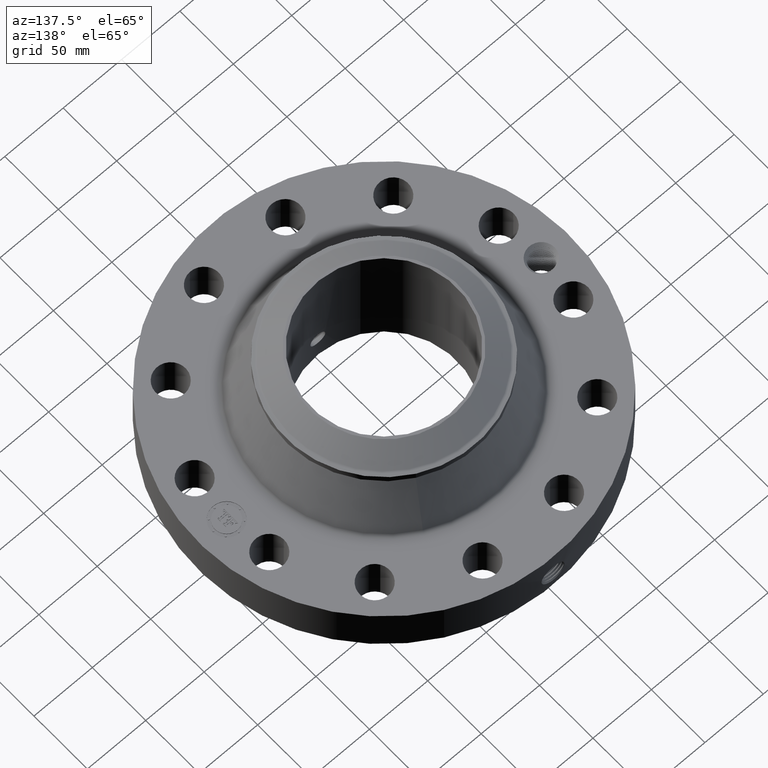
[diagram: clean part render]
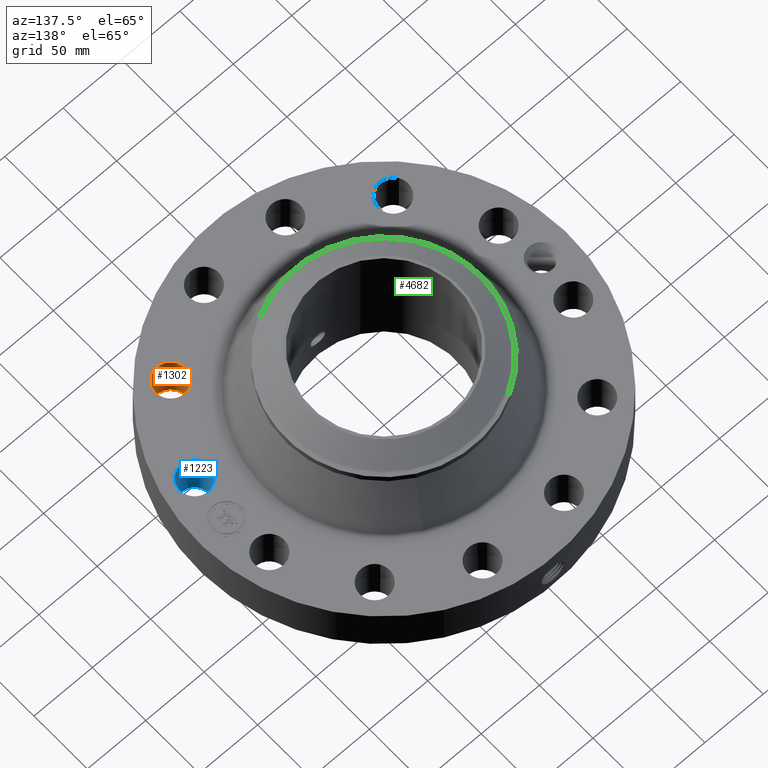
[diagram: same view with three faces highlighted in distinct colors, each labeled with its STEP entity id]
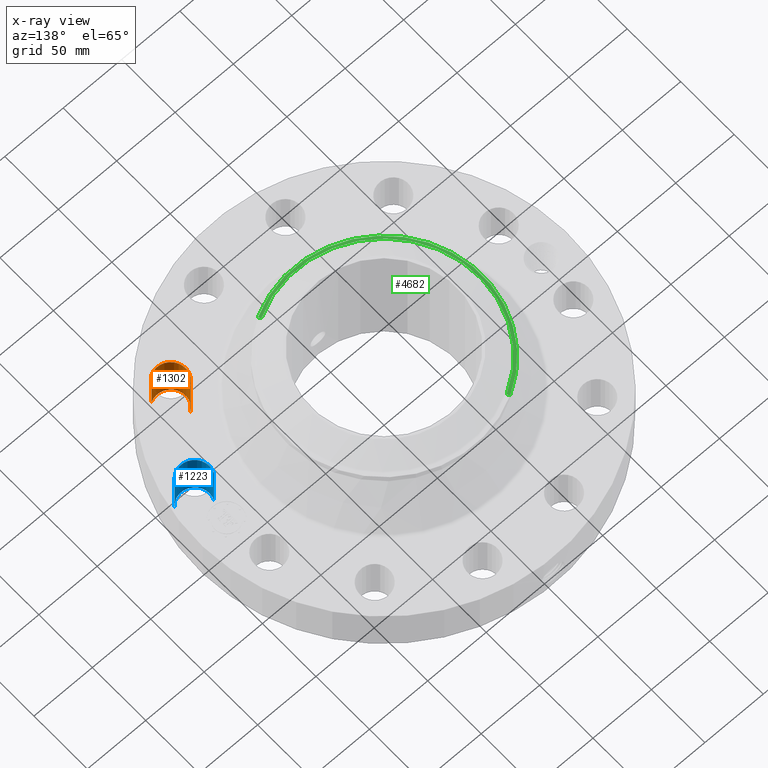
[diagram: x-ray of the same camera — body ghosted, the three highlighted faces saturated]
A machine part, auxiliary view with three faces highlighted in distinct colors.
The next image is the same camera in x-ray (body ghosted, the three faces saturated) — at least one of them is partly hidden behind the body in this view.
Their STEP definitions:

[orange] entity #1302 — the highlighted cylindrical surface (edge-blend (fillet) strip) has radius 12.7 mm, axis along (0, -0, -1).
#240=AXIS2_PLACEMENT_3D('Circle Axis2P3D',#238,#239,$) ;
#591=AXIS2_PLACEMENT_3D('Circle Axis2P3D',#589,#590,$) ;
#1277=AXIS2_PLACEMENT_3D('Cylinder Axis2P3D',#1274,#1275,#1276) ;
#233=CARTESIAN_POINT('Vertex',(3.49458899651,-3.32774401981,0.250000000001)) ;
#235=CARTESIAN_POINT('Vertex',(4.01488501972,-4.18172999642,0.250000000001)) ;
#238=CARTESIAN_POINT('Axis2P3D Location',(3.75473700812,-3.75473700812,0.250000000001)) ;
#589=CARTESIAN_POINT('Axis2P3D Location',(3.75473700812,-3.75473700812,1.87000000001)) ;
#593=CARTESIAN_POINT('Vertex',(4.01488501972,-4.18172999642,1.87000000001)) ;
#595=CARTESIAN_POINT('Vertex',(3.49458899651,-3.32774401981,1.87000000001)) ;
#1274=CARTESIAN_POINT('Axis2P3D Location',(3.75473700812,-3.75473700812,1.86606299213)) ;
#1279=CARTESIAN_POINT('Line Origine',(3.49458899651,-3.32774401981,1.06)) ;
#1284=CARTESIAN_POINT('Line Origine',(4.01488501972,-4.18172999642,1.06)) ;
#239=DIRECTION('Axis2P3D Direction',(0.,0.,-0.0393700787402)) ;
#590=DIRECTION('Axis2P3D Direction',(0.,0.,-0.0393700787402)) ;
#1275=DIRECTION('Axis2P3D Direction',(0.,-0.,-0.0393700787402)) ;
#1276=DIRECTION('Axis2P3D XDirection',(0.0204840954021,-0.0336214951417,0.)) ;
#1280=DIRECTION('Vector Direction',(0.,0.,-0.0393700787402)) ;
#1285=DIRECTION('Vector Direction',(0.,0.,-0.0393700787402)) ;
#1281=VECTOR('Line Direction',#1280,0.0393700787402) ;
#1286=VECTOR('Line Direction',#1285,0.0393700787402) ;
#1297=ORIENTED_EDGE('',*,*,#1288,.F.) ;
#1298=ORIENTED_EDGE('',*,*,#242,.T.) ;
#1299=ORIENTED_EDGE('',*,*,#1283,.T.) ;
#1300=ORIENTED_EDGE('',*,*,#597,.F.) ;
#1302=ADVANCED_FACE('PartBody',(#1301),#1278,.F.) ;
#241=CIRCLE('generated circle',#240,0.500000000002) ;
#592=CIRCLE('generated circle',#591,0.500000000002) ;
#1278=CYLINDRICAL_SURFACE('generated cylinder',#1277,0.500000000002) ;
#242=EDGE_CURVE('',#236,#234,#241,.T.) ;
#597=EDGE_CURVE('',#594,#596,#592,.T.) ;
#1283=EDGE_CURVE('',#234,#596,#1282,.F.) ;
#1288=EDGE_CURVE('',#236,#594,#1287,.F.) ;
#1296=EDGE_LOOP('',(#1297,#1298,#1299,#1300)) ;
#1301=FACE_OUTER_BOUND('',#1296,.T.) ;
#1282=LINE('Line',#1279,#1281) ;
#1287=LINE('Line',#1284,#1286) ;
#234=VERTEX_POINT('',#233) ;
#236=VERTEX_POINT('',#235) ;
#594=VERTEX_POINT('',#593) ;
#596=VERTEX_POINT('',#595) ;

[blue] entity #1223 — the highlighted cylindrical surface (edge-blend (fillet) strip) has radius 12.7 mm, axis along (0, -0, -1).
#195=AXIS2_PLACEMENT_3D('Circle Axis2P3D',#193,#194,$) ;
#564=AXIS2_PLACEMENT_3D('Circle Axis2P3D',#562,#563,$) ;
#1205=AXIS2_PLACEMENT_3D('Cylinder Axis2P3D',#1202,#1203,#1204) ;
#193=CARTESIAN_POINT('Axis2P3D Location',(5.12906613762,-1.3743291295,0.250000000001)) ;
#197=CARTESIAN_POINT('Vertex',(5.56785741856,-1.6140418988,0.250000000001)) ;
#199=CARTESIAN_POINT('Vertex',(4.69027485667,-1.1346163602,0.250000000001)) ;
#557=CARTESIAN_POINT('Vertex',(4.69027485667,-1.1346163602,1.87000000001)) ;
#559=CARTESIAN_POINT('Vertex',(5.56785741856,-1.6140418988,1.87000000001)) ;
#562=CARTESIAN_POINT('Axis2P3D Location',(5.12906613762,-1.3743291295,1.87000000001)) ;
#1202=CARTESIAN_POINT('Axis2P3D Location',(5.12906613762,-1.3743291295,1.86606299213)) ;
#1207=CARTESIAN_POINT('Line Origine',(5.56785741856,-1.6140418988,1.06)) ;
#1212=CARTESIAN_POINT('Line Origine',(4.69027485667,-1.1346163602,1.06)) ;
#194=DIRECTION('Axis2P3D Direction',(0.,0.,-0.0393700787402)) ;
#563=DIRECTION('Axis2P3D Direction',(0.,0.,-0.0393700787402)) ;
#1203=DIRECTION('Axis2P3D Direction',(0.,-0.,-0.0393700787402)) ;
#1204=DIRECTION('Axis2P3D XDirection',(-0.0345504945626,0.0188750212049,0.)) ;
#1208=DIRECTION('Vector Direction',(0.,0.,-0.0393700787402)) ;
#1213=DIRECTION('Vector Direction',(0.,0.,-0.0393700787402)) ;
#1209=VECTOR('Line Direction',#1208,0.0393700787402) ;
#1214=VECTOR('Line Direction',#1213,0.0393700787402) ;
#1218=ORIENTED_EDGE('',*,*,#1211,.F.) ;
#1219=ORIENTED_EDGE('',*,*,#201,.T.) ;
#1220=ORIENTED_EDGE('',*,*,#1216,.T.) ;
#1221=ORIENTED_EDGE('',*,*,#566,.F.) ;
#1223=ADVANCED_FACE('PartBody',(#1222),#1206,.F.) ;
#196=CIRCLE('generated circle',#195,0.500000000002) ;
#565=CIRCLE('generated circle',#564,0.500000000002) ;
#1206=CYLINDRICAL_SURFACE('generated cylinder',#1205,0.500000000002) ;
#201=EDGE_CURVE('',#198,#200,#196,.T.) ;
#566=EDGE_CURVE('',#560,#558,#565,.T.) ;
#1211=EDGE_CURVE('',#198,#560,#1210,.F.) ;
#1216=EDGE_CURVE('',#200,#558,#1215,.F.) ;
#1217=EDGE_LOOP('',(#1218,#1219,#1220,#1221)) ;
#1222=FACE_OUTER_BOUND('',#1217,.T.) ;
#1210=LINE('Line',#1207,#1209) ;
#1215=LINE('Line',#1212,#1214) ;
#198=VERTEX_POINT('',#197) ;
#200=VERTEX_POINT('',#199) ;
#558=VERTEX_POINT('',#557) ;
#560=VERTEX_POINT('',#559) ;

[green] entity #4682 — the highlighted conical surface has half-angle 80 deg.
#3482=AXIS2_PLACEMENT_3D('Circle Axis2P3D',#3480,#3481,$) ;
#3495=AXIS2_PLACEMENT_3D('Circle Axis2P3D',#3493,#3494,$) ;
#4641=AXIS2_PLACEMENT_3D('Cone Axis2P3D',#4638,#4639,#4640) ;
#4672=AXIS2_PLACEMENT_3D('Circle Axis2P3D',#4670,#4671,$) ;
#3463=CARTESIAN_POINT('Vertex',(-1.58929566048,-2.90918619268,3.77554549949)) ;
#3477=CARTESIAN_POINT('Vertex',(1.58929566048,-2.90918619268,3.77554549949)) ;
#3480=CARTESIAN_POINT('Axis2P3D Location',(0.,0.,3.77554549949)) ;
#3493=CARTESIAN_POINT('Axis2P3D Location',(0.,0.,3.77554549949)) ;
#3497=CARTESIAN_POINT('Vertex',(-1.58929566048,2.90918619268,3.77554549949)) ;
#4638=CARTESIAN_POINT('Axis2P3D Location',(0.,0.,3.79141601923)) ;
#4643=CARTESIAN_POINT('Line Origine',(-1.5677200274,2.86969226124,3.78348075936)) ;
#4647=CARTESIAN_POINT('Vertex',(-1.54614439432,2.8301983298,3.79141601923)) ;
#4654=CARTESIAN_POINT('Vertex',(1.54614439432,-2.8301983298,3.79141601923)) ;
#4657=CARTESIAN_POINT('Line Origine',(1.5677200274,-2.86969226124,3.78348075936)) ;
#4670=CARTESIAN_POINT('Axis2P3D Location',(0.,0.,3.79141601923)) ;
#3481=DIRECTION('Axis2P3D Direction',(0.,0.,-0.0393700787402)) ;
#3494=DIRECTION('Axis2P3D Direction',(0.,0.,-0.0393700787402)) ;
#4639=DIRECTION('Axis2P3D Direction',(-0.,-0.,-0.0393700787402)) ;
#4640=DIRECTION('Axis2P3D XDirection',(0.0188750212049,-0.0345504945626,0.)) ;
#4644=DIRECTION('Vector Direction',(-0.0185882672208,0.0340255949157,-0.00683654242783)) ;
#4658=DIRECTION('Vector Direction',(0.0185882672208,-0.0340255949157,-0.00683654242783)) ;
#4671=DIRECTION('Axis2P3D Direction',(0.,0.,-0.0393700787402)) ;
#4645=VECTOR('Line Direction',#4644,0.0393700787402) ;
#4659=VECTOR('Line Direction',#4658,0.0393700787402) ;
#4676=ORIENTED_EDGE('',*,*,#4661,.F.) ;
#4677=ORIENTED_EDGE('',*,*,#4674,.F.) ;
#4678=ORIENTED_EDGE('',*,*,#4649,.T.) ;
#4679=ORIENTED_EDGE('',*,*,#3499,.T.) ;
#4680=ORIENTED_EDGE('',*,*,#3484,.F.) ;
#4682=ADVANCED_FACE('PartBody',(#4681),#4642,.T.) ;
#3483=CIRCLE('generated circle',#3482,3.31500000001) ;
#3496=CIRCLE('generated circle',#3495,3.31500000001) ;
#4673=CIRCLE('generated circle',#4672,3.22499380994) ;
#4642=CONICAL_SURFACE('Cone',#4641,3.22499380994,1.3962634016) ;
#3484=EDGE_CURVE('',#3478,#3464,#3483,.T.) ;
#3499=EDGE_CURVE('',#3498,#3464,#3496,.F.) ;
#4649=EDGE_CURVE('',#4648,#3498,#4646,.T.) ;
#4661=EDGE_CURVE('',#4655,#3478,#4660,.T.) ;
#4674=EDGE_CURVE('',#4648,#4655,#4673,.F.) ;
#4675=EDGE_LOOP('',(#4676,#4677,#4678,#4679,#4680)) ;
#4681=FACE_OUTER_BOUND('',#4675,.T.) ;
#4646=LINE('Line',#4643,#4645) ;
#4660=LINE('Line',#4657,#4659) ;
#3464=VERTEX_POINT('',#3463) ;
#3478=VERTEX_POINT('',#3477) ;
#3498=VERTEX_POINT('',#3497) ;
#4648=VERTEX_POINT('',#4647) ;
#4655=VERTEX_POINT('',#4654) ;